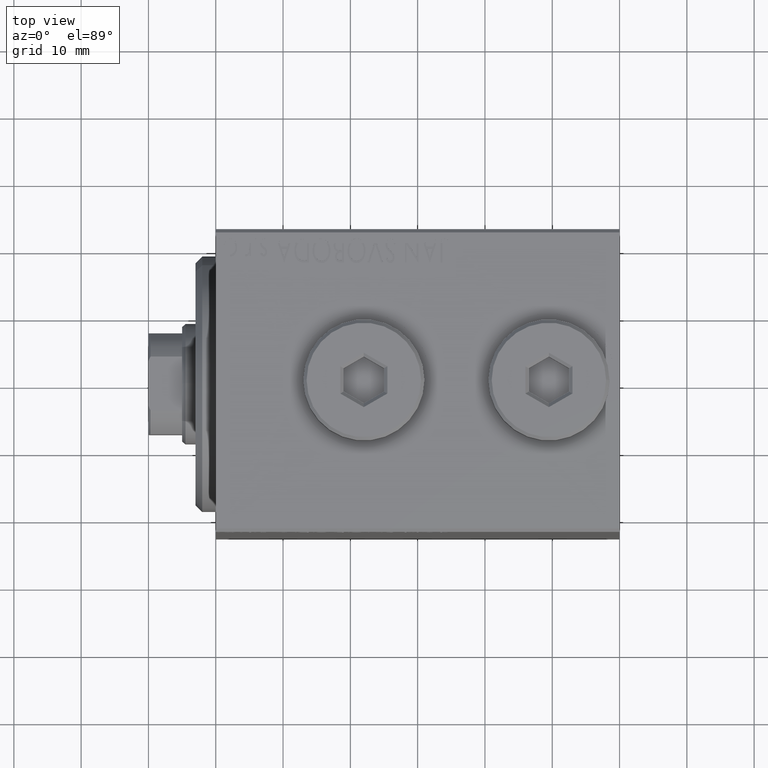
[diagram: clean part render]
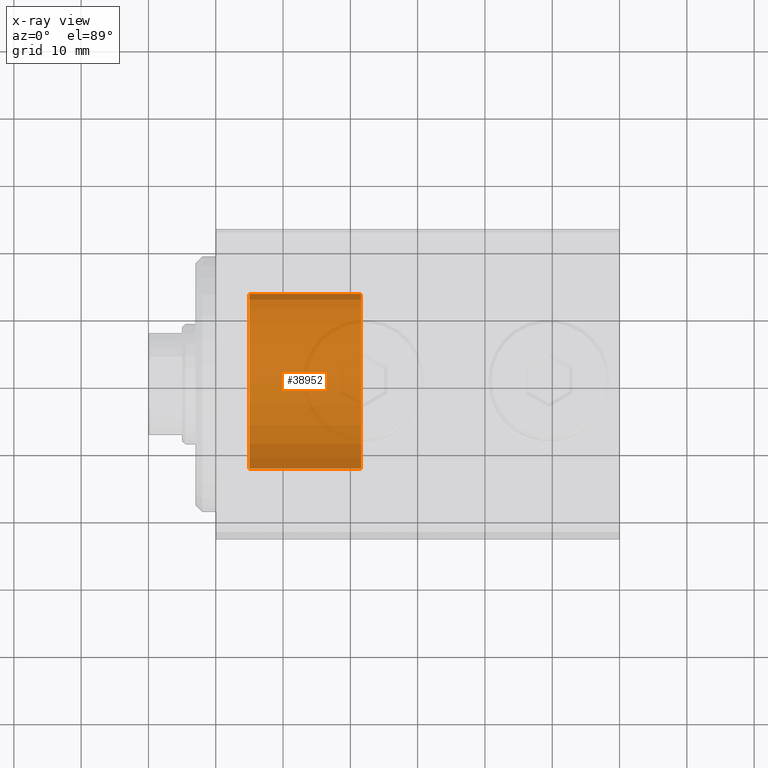
[diagram: x-ray — body ghosted, one internal face saturated and labeled with its STEP entity id]
A machine part, top view, then the same camera in x-ray: the body is ghosted and one INTERNAL B-rep face — a face not visible from any outside direction — is saturated and labeled: STEP entity #38952.
In plain terms, the highlighted cylindrical surface (partial cylindrical patch) has radius 13.5 mm, axis along (-1, 0, 0).
Its self-contained STEP definition (entity closure, byte-faithful):
#634 = ORIENTED_EDGE ( 'NONE', *, *, #9530, .T. ) ;
#2033 = ORIENTED_EDGE ( 'NONE', *, *, #2713, .F. ) ;
#2541 = VECTOR ( 'NONE', #40901, 1000.000000000000000 ) ;
#2713 = EDGE_CURVE ( 'NONE', #32765, #26419, #24079, .T. ) ;
#5103 = VERTEX_POINT ( 'NONE', #42981 ) ;
#7297 = AXIS2_PLACEMENT_3D ( 'NONE', #7360, #18942, #14240 ) ;
#7360 = CARTESIAN_POINT ( 'NONE',  ( -5.000000000000000000, 0.000000000000000000, 0.000000000000000000 ) ) ;
#8224 = EDGE_LOOP ( 'NONE', ( #2033, #634, #19987, #18485 ) ) ;
#8696 = FACE_OUTER_BOUND ( 'NONE', #8224, .T. ) ;
#9356 = LINE ( 'NONE', #37252, #2541 ) ;
#9530 = EDGE_CURVE ( 'NONE', #32765, #5103, #44720, .T. ) ;
#13886 = CARTESIAN_POINT ( 'NONE',  ( -21.60000000000000142, 1.653273178848926472E-15, 13.50000000000000000 ) ) ;
#14240 = DIRECTION ( 'NONE',  ( 0.000000000000000000, 0.000000000000000000, 1.000000000000000000 ) ) ;
#14935 = AXIS2_PLACEMENT_3D ( 'NONE', #36591, #33165, #29733 ) ;
#15239 = DIRECTION ( 'NONE',  ( -1.000000000000000000, 0.000000000000000000, 0.000000000000000000 ) ) ;
#16397 = VERTEX_POINT ( 'NONE', #25782 ) ;
#18485 = ORIENTED_EDGE ( 'NONE', *, *, #40394, .F. ) ;
#18723 = EDGE_CURVE ( 'NONE', #5103, #16397, #32129, .T. ) ;
#18942 = DIRECTION ( 'NONE',  ( -1.000000000000000000, 0.000000000000000000, 0.000000000000000000 ) ) ;
#19347 = DIRECTION ( 'NONE',  ( 0.000000000000000000, 0.000000000000000000, 1.000000000000000000 ) ) ;
#19705 = AXIS2_PLACEMENT_3D ( 'NONE', #25981, #15239, #19347 ) ;
#19987 = ORIENTED_EDGE ( 'NONE', *, *, #18723, .T. ) ;
#22657 = CYLINDRICAL_SURFACE ( 'NONE', #14935, 13.50000000000000000 ) ;
#24079 = CIRCLE ( 'NONE', #19705, 13.50000000000000000 ) ;
#25782 = CARTESIAN_POINT ( 'NONE',  ( -5.000000000000000000, 0.000000000000000000, -13.50000000000000000 ) ) ;
#25981 = CARTESIAN_POINT ( 'NONE',  ( -21.60000000000000142, 0.000000000000000000, 0.000000000000000000 ) ) ;
#26419 = VERTEX_POINT ( 'NONE', #41367 ) ;
#29733 = DIRECTION ( 'NONE',  ( 0.000000000000000000, 0.000000000000000000, -1.000000000000000000 ) ) ;
#31248 = DIRECTION ( 'NONE',  ( 1.000000000000000000, -0.000000000000000000, -0.000000000000000000 ) ) ;
#32129 = CIRCLE ( 'NONE', #7297, 13.50000000000000000 ) ;
#32765 = VERTEX_POINT ( 'NONE', #41127 ) ;
#33165 = DIRECTION ( 'NONE',  ( 1.000000000000000000, -0.000000000000000000, -0.000000000000000000 ) ) ;
#36536 = VECTOR ( 'NONE', #31248, 1000.000000000000000 ) ;
#36591 = CARTESIAN_POINT ( 'NONE',  ( -21.60000000000000142, 0.000000000000000000, 0.000000000000000000 ) ) ;
#37252 = CARTESIAN_POINT ( 'NONE',  ( -21.60000000000000142, 0.000000000000000000, -13.50000000000000000 ) ) ;
#38952 = ADVANCED_FACE ( 'NONE', ( #8696 ), #22657, .T. ) ;
#40394 = EDGE_CURVE ( 'NONE', #26419, #16397, #9356, .T. ) ;
#40901 = DIRECTION ( 'NONE',  ( 1.000000000000000000, -0.000000000000000000, -0.000000000000000000 ) ) ;
#41127 = CARTESIAN_POINT ( 'NONE',  ( -21.60000000000000142, 1.653273178848926472E-15, 13.50000000000000000 ) ) ;
#41367 = CARTESIAN_POINT ( 'NONE',  ( -21.60000000000000142, 0.000000000000000000, -13.50000000000000000 ) ) ;
#42981 = CARTESIAN_POINT ( 'NONE',  ( -5.000000000000000000, 1.653273178848926472E-15, 13.50000000000000000 ) ) ;
#44720 = LINE ( 'NONE', #13886, #36536 ) ;